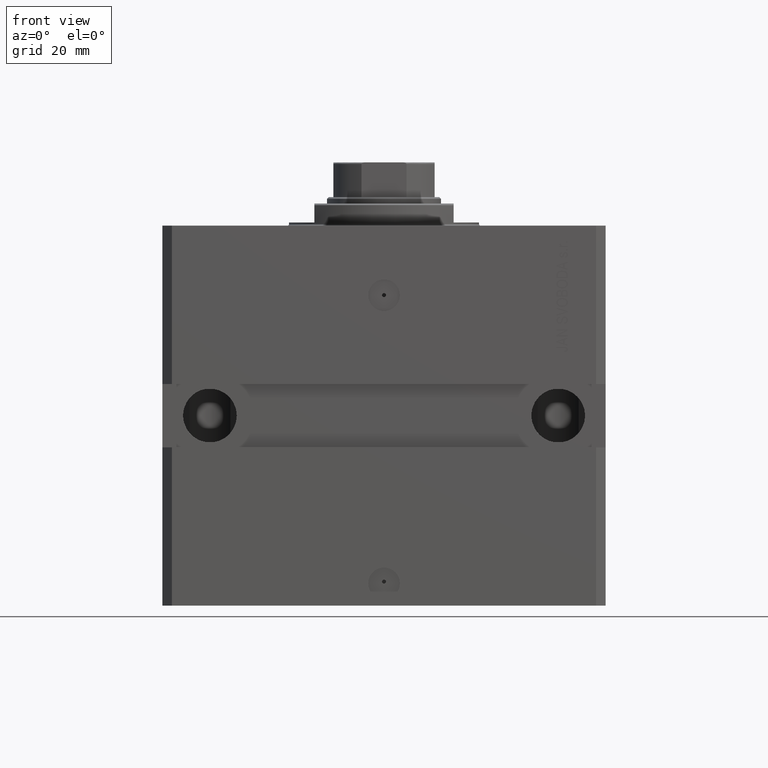
[diagram: clean part render]
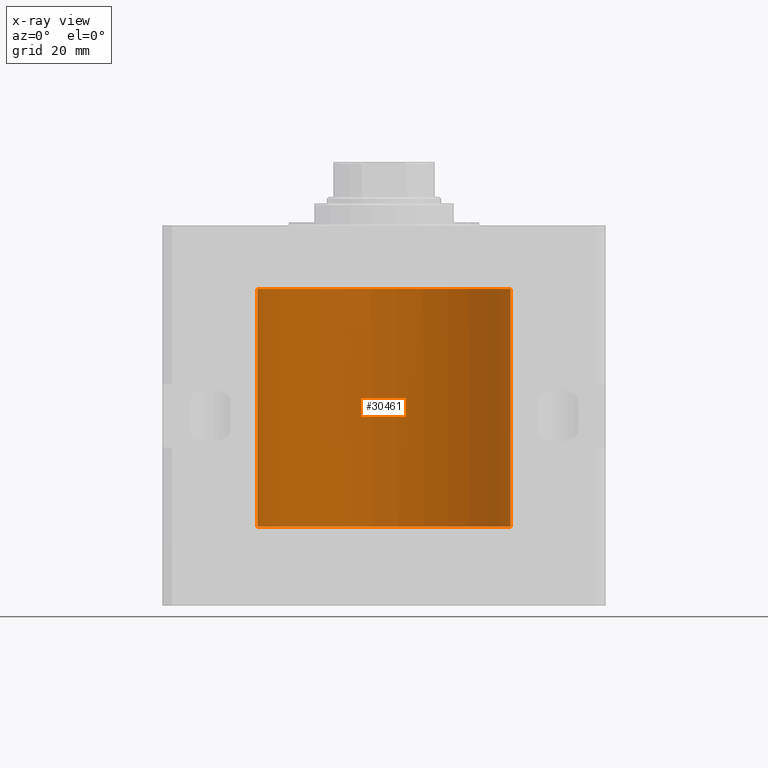
[diagram: x-ray — body ghosted, one internal face saturated and labeled with its STEP entity id]
A machine part, front view, then the same camera in x-ray: the body is ghosted and one INTERNAL B-rep face — a face not visible from any outside direction — is saturated and labeled: STEP entity #30461.
In plain terms, the highlighted cylindrical surface (partial cylindrical patch) has radius 40 mm, axis along (0, 0, 1).
Its self-contained STEP definition (entity closure, byte-faithful):
#146 = DIRECTION ( 'NONE',  ( 1.000000000000000000, 0.000000000000000000, 0.000000000000000000 ) ) ;
#405 = CARTESIAN_POINT ( 'NONE',  ( 0.000000000000000000, 0.000000000000000000, -95.00000000000000000 ) ) ;
#1159 = CARTESIAN_POINT ( 'NONE',  ( -39.99511688944039633, 0.6250000000000124345, -95.00000000000000000 ) ) ;
#1403 = CARTESIAN_POINT ( 'NONE',  ( -39.99511688944039633, 0.6250000000000127676, -94.83492185971167032 ) ) ;
#2606 = ORIENTED_EDGE ( 'NONE', *, *, #16634, .F. ) ;
#2984 = CARTESIAN_POINT ( 'NONE',  ( 40.00000000000000000, 0.000000000000000000, -95.00000000000000000 ) ) ;
#3288 = CARTESIAN_POINT ( 'NONE',  ( -39.99511598657579725, 0.6250577762831023287, -35.16284024614854076 ) ) ;
#3771 = CARTESIAN_POINT ( 'NONE',  ( -39.99999999999999289, 0.1631654129523948116, -35.62499999999986500 ) ) ;
#4698 = CARTESIAN_POINT ( 'NONE',  ( -40.00000000000004974, 3.462873814982701370E-13, -35.62500000000321165 ) ) ;
#4893 = VECTOR ( 'NONE', #40582, 1000.000000000000000 ) ;
#5436 = EDGE_CURVE ( 'NONE', #28768, #45002, #36171, .T. ) ;
#5599 = AXIS2_PLACEMENT_3D ( 'NONE', #405, #26317, #7575 ) ;
#6392 = ORIENTED_EDGE ( 'NONE', *, *, #10517, .T. ) ;
#6853 = EDGE_CURVE ( 'NONE', #45002, #25669, #15243, .T. ) ;
#7226 = B_SPLINE_CURVE_WITH_KNOTS ( 'NONE', 3,
 ( #48670, #33144, #31097, #14875, #38483, #22529, #7485, #3288, #40775, #30167, #3771, #4698 ),
 .UNSPECIFIED., .F., .F.,
 ( 4, 2, 2, 2, 2, 4 ),
 ( 1.036137471307501474E-18, 0.0002442581846113557891, 0.0004885163692227106023, 0.0009770327384454201205, 0.001465549107668129639, 0.001954065476890838940 ),
 .UNSPECIFIED. ) ;
#7485 = CARTESIAN_POINT ( 'NONE',  ( -39.99511779353280616, 0.6249421451454513221, -34.83671655111833587 ) ) ;
#7498 = DIRECTION ( 'NONE',  ( 1.000000000000000000, 0.000000000000000000, 0.000000000000000000 ) ) ;
#7575 = DIRECTION ( 'NONE',  ( 1.000000000000000000, 0.000000000000000000, 0.000000000000000000 ) ) ;
#8077 = CARTESIAN_POINT ( 'NONE',  ( -39.99999999999998579, 0.1629608811977192317, -94.37500000000035527 ) ) ;
#9419 = VERTEX_POINT ( 'NONE', #1159 ) ;
#10517 = EDGE_CURVE ( 'NONE', #30901, #9419, #30715, .T. ) ;
#10889 = ORIENTED_EDGE ( 'NONE', *, *, #41891, .T. ) ;
#11268 = CYLINDRICAL_SURFACE ( 'NONE', #5599, 40.00000000000000000 ) ;
#12030 = CARTESIAN_POINT ( 'NONE',  ( -39.99627192929612107, 0.5584288736112177354, -94.67445463238748005 ) ) ;
#14875 = CARTESIAN_POINT ( 'NONE',  ( -39.99883108112248919, 0.3150272514608761787, -34.45401719637956717 ) ) ;
#15243 = CIRCLE ( 'NONE', #16842, 40.00000000000000000 ) ;
#15583 = CARTESIAN_POINT ( 'NONE',  ( -40.00000000000000000, 1.067655236296513633E-14, -34.37500000000000000 ) ) ;
#16634 = EDGE_CURVE ( 'NONE', #30901, #46991, #22343, .T. ) ;
#16842 = AXIS2_PLACEMENT_3D ( 'NONE', #18910, #33953, #146 ) ;
#17527 = VERTEX_POINT ( 'NONE', #15583 ) ;
#18910 = CARTESIAN_POINT ( 'NONE',  ( 0.000000000000000000, 0.000000000000000000, -20.00000000000000355 ) ) ;
#19683 = CARTESIAN_POINT ( 'NONE',  ( -39.99511688944039633, 0.6250000000000124345, -95.00000000000000000 ) ) ;
#19697 = ORIENTED_EDGE ( 'NONE', *, *, #33443, .F. ) ;
#20557 = AXIS2_PLACEMENT_3D ( 'NONE', #30424, #30669, #7498 ) ;
#22343 = LINE ( 'NONE', #36887, #32813 ) ;
#22529 = CARTESIAN_POINT ( 'NONE',  ( -39.99628330279644928, 0.5573335244821722156, -34.67349122557948249 ) ) ;
#23284 = ORIENTED_EDGE ( 'NONE', *, *, #6853, .T. ) ;
#24343 = DIRECTION ( 'NONE',  ( -0.000000000000000000, -0.000000000000000000, 1.000000000000000000 ) ) ;
#24966 = EDGE_LOOP ( 'NONE', ( #2606, #6392, #30688, #30986, #23284, #19697, #10889 ) ) ;
#25669 = VERTEX_POINT ( 'NONE', #45184 ) ;
#25784 = DIRECTION ( 'NONE',  ( -0.000000000000000000, -0.000000000000000000, 1.000000000000000000 ) ) ;
#26317 = DIRECTION ( 'NONE',  ( -0.000000000000000000, -0.000000000000000000, 1.000000000000000000 ) ) ;
#28066 = CARTESIAN_POINT ( 'NONE',  ( 40.00000000000000000, 0.000000000000000000, -95.00000000000000000 ) ) ;
#28768 = VERTEX_POINT ( 'NONE', #2984 ) ;
#30167 = CARTESIAN_POINT ( 'NONE',  ( -39.99884667815961592, 0.3253863549934230548, -35.55855380835959778 ) ) ;
#30424 = CARTESIAN_POINT ( 'NONE',  ( 0.000000000000000000, 0.000000000000000000, -95.00000000000000000 ) ) ;
#30461 = ADVANCED_FACE ( 'NONE', ( #45064 ), #11268, .F. ) ;
#30669 = DIRECTION ( 'NONE',  ( 0.000000000000000000, 0.000000000000000000, 1.000000000000000000 ) ) ;
#30688 = ORIENTED_EDGE ( 'NONE', *, *, #39184, .F. ) ;
#30715 = B_SPLINE_CURVE_WITH_KNOTS ( 'NONE', 3,
 ( #45821, #8077, #38173, #12030, #1403, #19683 ),
 .UNSPECIFIED., .F., .F.,
 ( 4, 2, 4 ),
 ( 0.0009772540344090913447, 0.001465458787294959039, 0.001953663540180826733 ),
 .UNSPECIFIED. ) ;
#30901 = VERTEX_POINT ( 'NONE', #33117 ) ;
#30986 = ORIENTED_EDGE ( 'NONE', *, *, #5436, .T. ) ;
#31097 = CARTESIAN_POINT ( 'NONE',  ( -39.99973691478699322, 0.1636360998065314876, -34.39126145361714748 ) ) ;
#32465 = LINE ( 'NONE', #47267, #4893 ) ;
#32813 = VECTOR ( 'NONE', #25784, 1000.000000000000000 ) ;
#33117 = CARTESIAN_POINT ( 'NONE',  ( -40.00000000000012790, 9.803334896741571174E-13, -94.37499999999168665 ) ) ;
#33144 = CARTESIAN_POINT ( 'NONE',  ( -40.00000000000000000, 0.08259175989844856625, -34.37500000000000711 ) ) ;
#33443 = EDGE_CURVE ( 'NONE', #17527, #25669, #32465, .T. ) ;
#33953 = DIRECTION ( 'NONE',  ( 0.000000000000000000, 0.000000000000000000, 1.000000000000000000 ) ) ;
#36171 = LINE ( 'NONE', #28066, #46684 ) ;
#36887 = CARTESIAN_POINT ( 'NONE',  ( -40.00000000000000000, 4.898587196589413026E-15, -95.00000000000000000 ) ) ;
#38173 = CARTESIAN_POINT ( 'NONE',  ( -39.99884891268878562, 0.3251103027878634033, -94.44131772510861822 ) ) ;
#38483 = CARTESIAN_POINT ( 'NONE',  ( -39.99819482034362039, 0.3843641341271077372, -34.50046008996472580 ) ) ;
#39184 = EDGE_CURVE ( 'NONE', #28768, #9419, #41802, .T. ) ;
#40582 = DIRECTION ( 'NONE',  ( -0.000000000000000000, -0.000000000000000000, 1.000000000000000000 ) ) ;
#40775 = CARTESIAN_POINT ( 'NONE',  ( -39.99626798708276709, 0.5587118831704992461, -35.32511485424845432 ) ) ;
#40822 = CARTESIAN_POINT ( 'NONE',  ( -40.00000000000004974, 3.462873814982701370E-13, -35.62500000000321165 ) ) ;
#41802 = CIRCLE ( 'NONE', #20557, 40.00000000000000000 ) ;
#41891 = EDGE_CURVE ( 'NONE', #17527, #46991, #7226, .T. ) ;
#43583 = CARTESIAN_POINT ( 'NONE',  ( 40.00000000000000000, 0.000000000000000000, -20.00000000000000355 ) ) ;
#45002 = VERTEX_POINT ( 'NONE', #43583 ) ;
#45064 = FACE_OUTER_BOUND ( 'NONE', #24966, .T. ) ;
#45184 = CARTESIAN_POINT ( 'NONE',  ( -40.00000000000000000, 4.898587196589413026E-15, -20.00000000000000355 ) ) ;
#45821 = CARTESIAN_POINT ( 'NONE',  ( -40.00000000000012790, 9.803334896741571174E-13, -94.37499999999168665 ) ) ;
#46684 = VECTOR ( 'NONE', #24343, 1000.000000000000000 ) ;
#46991 = VERTEX_POINT ( 'NONE', #40822 ) ;
#47267 = CARTESIAN_POINT ( 'NONE',  ( -40.00000000000000000, 4.898587196589413026E-15, -95.00000000000000000 ) ) ;
#48670 = CARTESIAN_POINT ( 'NONE',  ( -40.00000000000000000, 1.067655236296513633E-14, -34.37500000000000000 ) ) ;